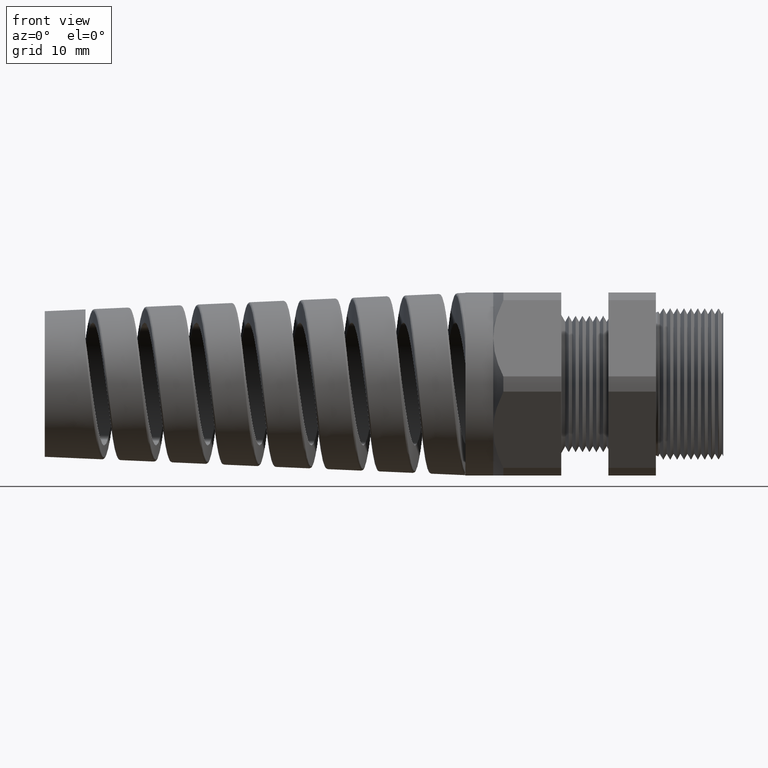
[diagram: clean part render]
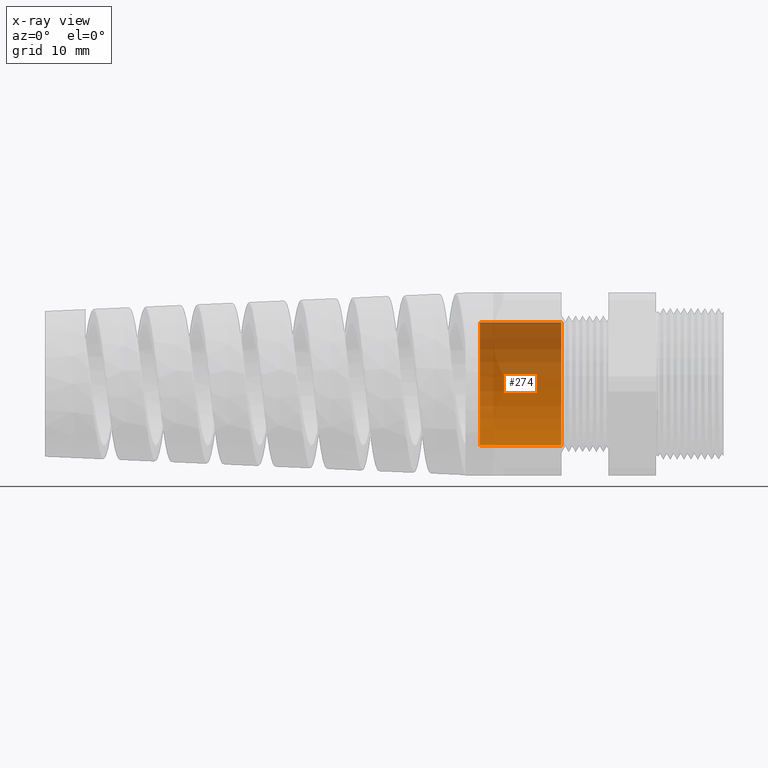
[diagram: x-ray — body ghosted, one internal face saturated and labeled with its STEP entity id]
A machine part, front view, then the same camera in x-ray: the body is ghosted and one INTERNAL B-rep face — a face not visible from any outside direction — is saturated and labeled: STEP entity #274.
In plain terms, the highlighted cylindrical surface (partial cylindrical patch) has radius 9.0424 mm, axis along (1, 0, 0).
Its self-contained STEP definition (entity closure, byte-faithful):
#192 = EDGE_LOOP ( 'NONE', ( #222, #219, #269, #288 ) ) ;
#200 = VERTEX_POINT ( 'NONE', #2011 ) ;
#202 = EDGE_CURVE ( 'NONE', #271, #200, #2073, .T. ) ;
#219 = ORIENTED_EDGE ( 'NONE', *, *, #220, .T. ) ;
#220 = EDGE_CURVE ( 'NONE', #200, #267, #2103, .T. ) ;
#222 = ORIENTED_EDGE ( 'NONE', *, *, #202, .T. ) ;
#267 = VERTEX_POINT ( 'NONE', #2149 ) ;
#268 = VERTEX_POINT ( 'NONE', #2148 ) ;
#269 = ORIENTED_EDGE ( 'NONE', *, *, #270, .F. ) ;
#270 = EDGE_CURVE ( 'NONE', #268, #267, #2147, .T. ) ;
#271 = VERTEX_POINT ( 'NONE', #2142 ) ;
#274 = ADVANCED_FACE ( 'NONE', ( #2201 ), #2200, .T. ) ;
#288 = ORIENTED_EDGE ( 'NONE', *, *, #289, .F. ) ;
#289 = EDGE_CURVE ( 'NONE', #271, #268, #2172, .T. ) ;
#2011 = CARTESIAN_POINT ( 'NONE',  ( -1.330000000000000100, 4.359742604964576400E-017, 0.3559999999999999300 ) ) ;
#2069 = DIRECTION ( 'NONE',  ( 0.0000000000000000000, 0.0000000000000000000, -1.000000000000000000 ) ) ;
#2070 = DIRECTION ( 'NONE',  ( 1.000000000000000000, 0.0000000000000000000, 0.0000000000000000000 ) ) ;
#2071 = CARTESIAN_POINT ( 'NONE',  ( -1.330000000000000100, 0.0000000000000000000, 0.0000000000000000000 ) ) ;
#2072 = AXIS2_PLACEMENT_3D ( 'NONE', #2071, #2070, #2069 ) ;
#2073 = CIRCLE ( 'NONE', #2072, 0.3559999999999999300 ) ;
#2100 = DIRECTION ( 'NONE',  ( 1.000000000000000000, 0.0000000000000000000, 0.0000000000000000000 ) ) ;
#2101 = VECTOR ( 'NONE', #2100, 39.37007874015748100 ) ;
#2102 = CARTESIAN_POINT ( 'NONE',  ( 0.09602717987635048200, 4.359742604964577000E-017, 0.3559999999999999800 ) ) ;
#2103 = LINE ( 'NONE', #2102, #2101 ) ;
#2142 = CARTESIAN_POINT ( 'NONE',  ( -1.330000000000000100, 0.0000000000000000000, -0.3559999999999999300 ) ) ;
#2143 = DIRECTION ( 'NONE',  ( 0.0000000000000000000, 0.0000000000000000000, -1.000000000000000000 ) ) ;
#2144 = DIRECTION ( 'NONE',  ( 1.000000000000000000, 0.0000000000000000000, 0.0000000000000000000 ) ) ;
#2145 = CARTESIAN_POINT ( 'NONE',  ( -0.8581889763779526600, 0.0000000000000000000, 0.0000000000000000000 ) ) ;
#2146 = AXIS2_PLACEMENT_3D ( 'NONE', #2145, #2144, #2143 ) ;
#2147 = CIRCLE ( 'NONE', #2146, 0.3559999999999999800 ) ;
#2148 = CARTESIAN_POINT ( 'NONE',  ( -0.8581889763779526600, 0.0000000000000000000, -0.3559999999999999800 ) ) ;
#2149 = CARTESIAN_POINT ( 'NONE',  ( -0.8581889763779526600, 4.359742604964577000E-017, 0.3559999999999999800 ) ) ;
#2169 = DIRECTION ( 'NONE',  ( 1.000000000000000000, 0.0000000000000000000, 0.0000000000000000000 ) ) ;
#2170 = VECTOR ( 'NONE', #2169, 39.37007874015748100 ) ;
#2171 = CARTESIAN_POINT ( 'NONE',  ( 0.09602717987635048200, 0.0000000000000000000, -0.3559999999999999800 ) ) ;
#2172 = LINE ( 'NONE', #2171, #2170 ) ;
#2195 = DIRECTION ( 'NONE',  ( 0.0000000000000000000, 0.0000000000000000000, -1.000000000000000000 ) ) ;
#2196 = DIRECTION ( 'NONE',  ( 1.000000000000000000, 0.0000000000000000000, 0.0000000000000000000 ) ) ;
#2197 = CARTESIAN_POINT ( 'NONE',  ( 0.09602717987635048200, 0.0000000000000000000, 0.0000000000000000000 ) ) ;
#2198 = AXIS2_PLACEMENT_3D ( 'NONE', #2197, #2196, #2195 ) ;
#2200 = CYLINDRICAL_SURFACE ( 'NONE', #2198, 0.3559999999999999800 ) ;
#2201 = FACE_OUTER_BOUND ( 'NONE', #192, .T. ) ;